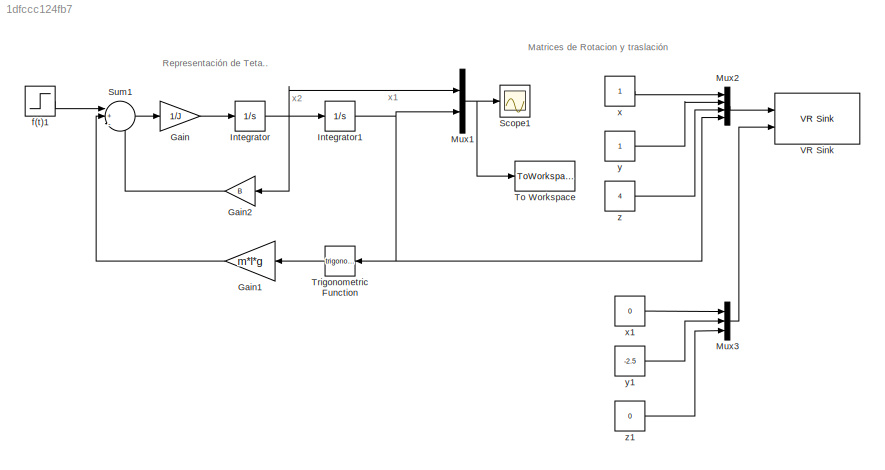
MODEL slx_1dfccc124fb7
KIND model
CONFIG AbsTol = auto
CONFIG FixedStep = auto
CONFIG MaxStep = auto
CONFIG MinStep = auto
CONFIG RelTol = 1e-3
CONFIG SampleTimeConstraint = Unconstrained
CONFIG Solver = ode45
CONFIG SolverMode = Auto
CONFIG SolverName = ode45
CONFIG StartTime = 0.0
CONFIG StopTime = 10.0
BLOCK [Gain] Gain
  Gain = 1/J
  OutDataTypeStr = Inherit: Inherit via internal rule
  ParamDataTypeStr = Inherit: Inherit via internal rule
  SaturateOnIntegerOverflow = off
BLOCK [Gain] Gain1
  Gain = m*l*g
  OutDataTypeStr = Inherit: Inherit via internal rule
  ParamDataTypeStr = Inherit: Inherit via internal rule
  SaturateOnIntegerOverflow = off
BLOCK [Gain] Gain2
  Gain = B
  OutDataTypeStr = Inherit: Inherit via internal rule
  ParamDataTypeStr = Inherit: Inherit via internal rule
  SaturateOnIntegerOverflow = off
BLOCK [Integrator] Integrator
  Ports = [1, 1]
BLOCK [Integrator] Integrator1
  Ports = [1, 1]
BLOCK [Mux] Mux1
  DisplayOption = bar
  Inputs = 2
  Ports = [2, 1]
BLOCK [Mux] Mux2
  DisplayOption = bar
  Ports = [4, 1]
BLOCK [Mux] Mux3
  DisplayOption = bar
  Inputs = 3
  Ports = [3, 1]
BLOCK [Scope] Scope1
  Floating = off
  NumInputPorts = 1
  Ports = [1]
  SaveName = ScopeData1
BLOCK [Sum] Sum1
  IconShape = round
  InputSameDT = off
  Inputs = |+--
  OutDataTypeStr = Inherit: Inherit via internal rule
  Ports = [3, 1]
  SaturateOnIntegerOverflow = off
BLOCK [ToWorkspace] To Workspace
  FixptAsFi = on
  MaxDataPoints = inf
  Ports = [1]
  SampleTime = -1
  Save2DSignal = 3-D array (concatenate along third dimension)
  SaveFormat = Timeseries
  VariableName = Salida
BLOCK [Trigonometry] Trigonometric Function
  Ports = [1, 1]
BLOCK [Reference] VR Sink  REF=vrlib/VR Sink
  AllowVariableSize = off
  AutoView = off
  FieldsWritten = Cable.rotation.4.1.1.double#Cable.translation.3.1.1.double
  InstantiateOnLoad = on
  Ports = [2]
  RemoteChange = off
  RemoteView = off
  SampleTime = 0.1
  SourceBlock = vrlib/VR Sink
  SourceType = Virtual Reality Sink
  VideoDimensions = []
  ViewEnable = on
  WorldFileName = Pendulo.WRL
BLOCK [Step] f(t)1
  SampleTime = 0
  Time = 2
BLOCK [Constant] x
BLOCK [Constant] x1
  Value = 0
BLOCK [Constant] y
BLOCK [Constant] y1
  Value = -2.5
BLOCK [Constant] z
  Value = 4
BLOCK [Constant] z1
  Value = 0
ANNOTATION (root): Matrices de Rotacion y traslación
ANNOTATION (root): Representación de Teta..
ANNOTATION (root): x1
ANNOTATION (root): x2
LINE Gain1:1 -> Sum1:2
LINE Gain2:1 -> Sum1:3
LINE Gain:1 -> Integrator:1
NET Integrator1:1 -> Mux1:2, Mux2:4, Trigonometric Function:1
NET Integrator:1 -> Gain2:1, Integrator1:1, Mux1:1
NET Mux1:1 -> Scope1:1, To Workspace:1
LINE Mux2:1 -> VR Sink:1
LINE Mux3:1 -> VR Sink:2
LINE Sum1:1 -> Gain:1
LINE Trigonometric Function:1 -> Gain1:1
LINE f(t)1:1 -> Sum1:1
LINE x1:1 -> Mux3:1
LINE x:1 -> Mux2:1
LINE y1:1 -> Mux3:2
LINE y:1 -> Mux2:2
LINE z1:1 -> Mux3:3
LINE z:1 -> Mux2:3
note: NET lines group one-source signal fan-out (src -> all destinations, sorted); 1:1 wires keep LINE
